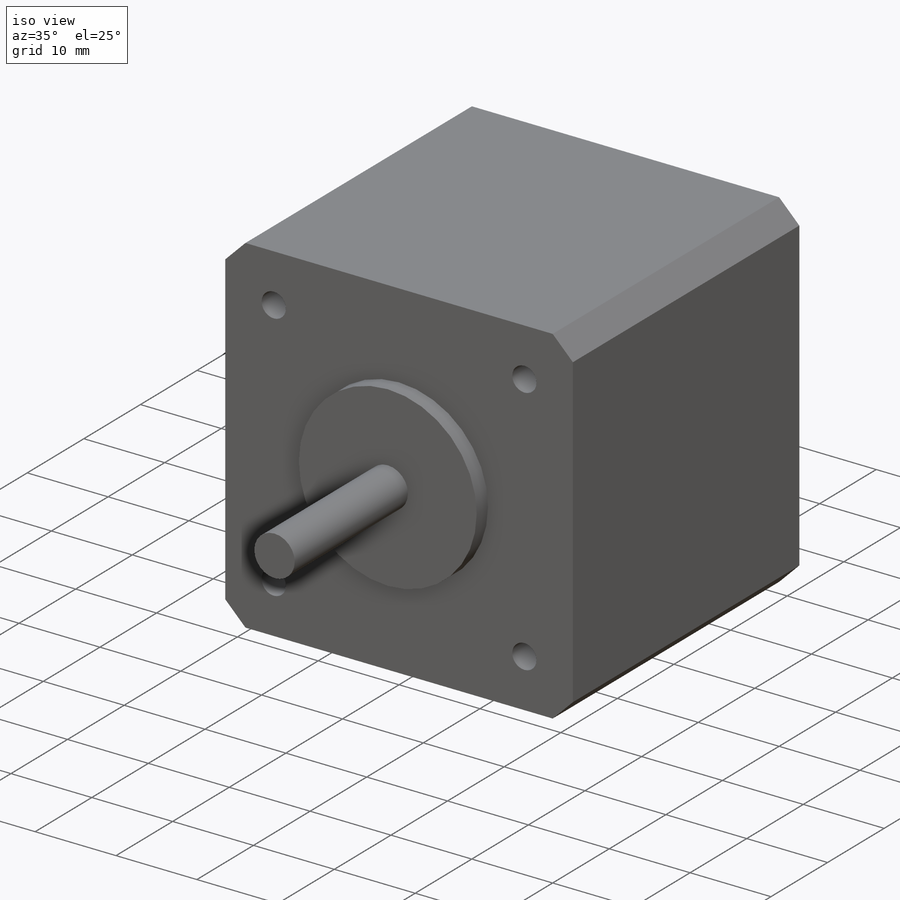
[diagram: iso view]
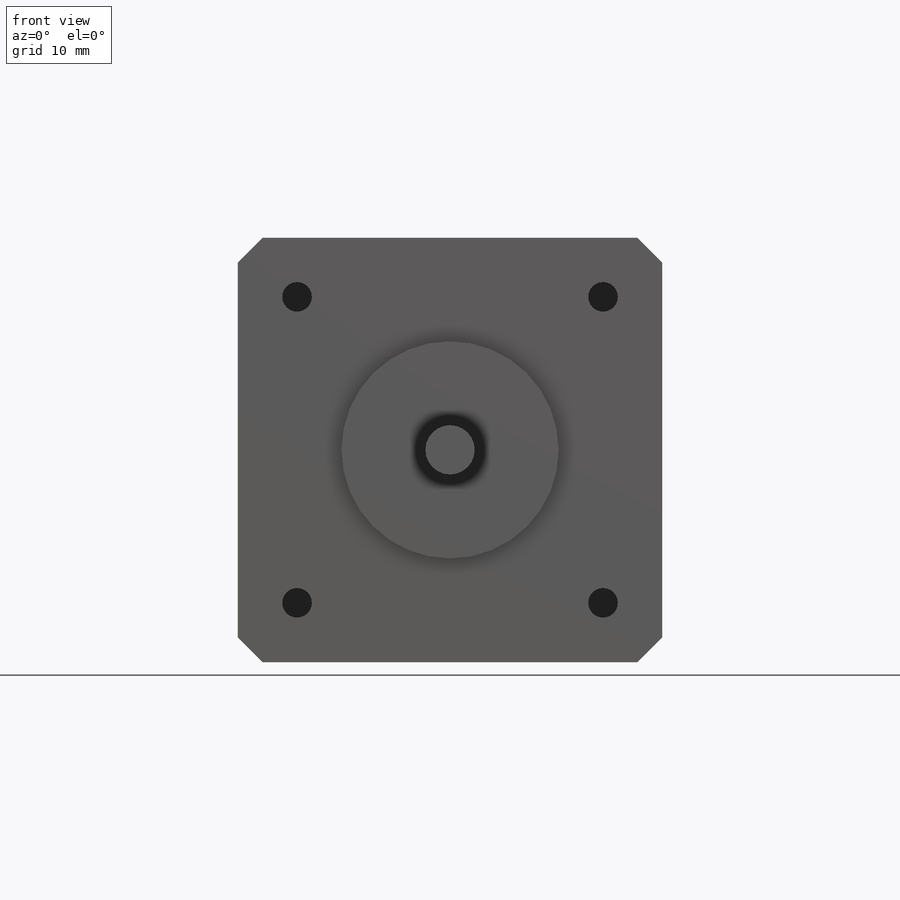
[diagram: front view]
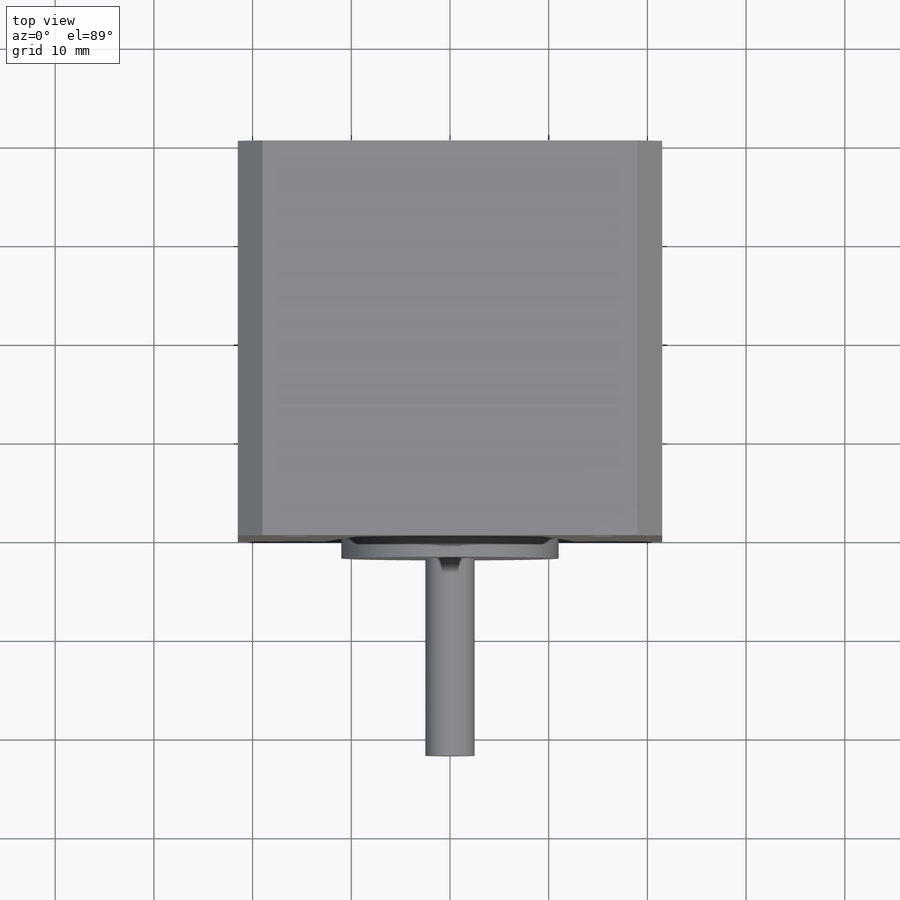
[diagram: top view]
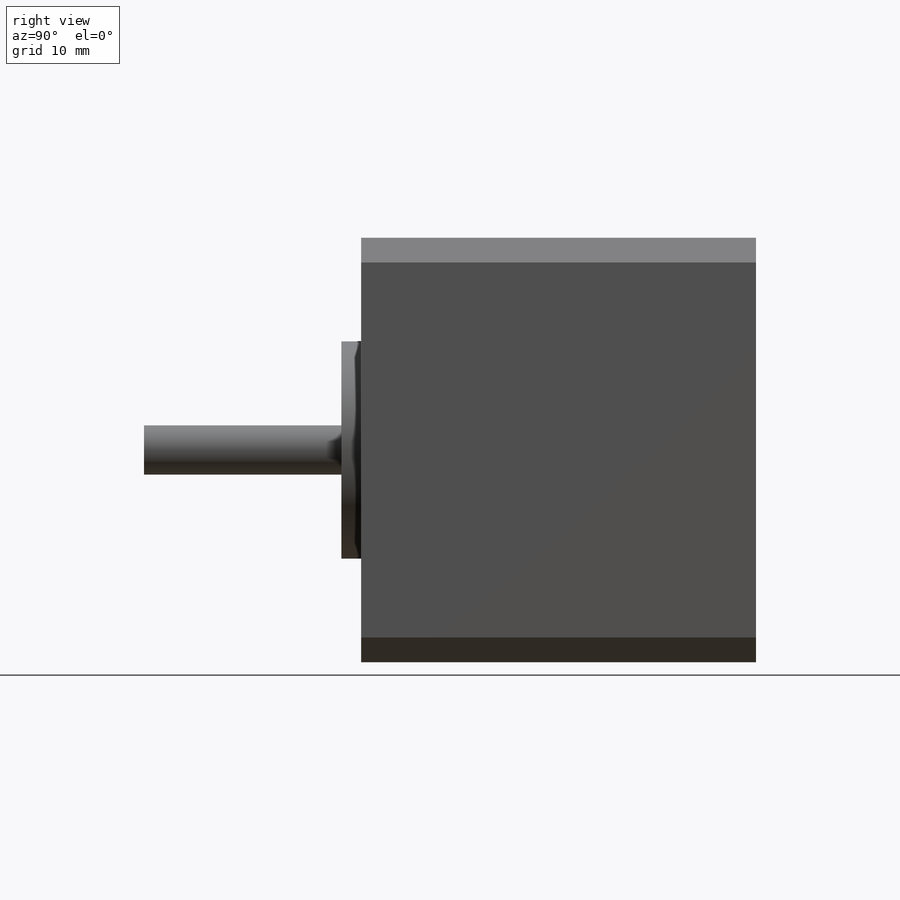
[diagram: right view]
SOLIDWORKS PART (.sldprt)
format: sldprt  version: not decoded by parser v0  size: 205,312 bytes
history: native  units: mm
features: sketch x4, extrude x3, material x1, chamfer x1, cut_extrude x1 (+11 scaffold rows collapsed)
feature tree (21):
  scaffold x11  (default folders/planes/origin — collapsed)
  material  "Material <not specified>"
  sketch  "Sketch1"  dims[D1=43.0mm]
  extrude  "Boss-Extrude1"  Depth=40mm
  chamfer  "Chamfer1"  Distance=2.5mm Angle=45deg
  sketch  "Sketch2"  dims[D1=~5.033482mm]
  extrude  "Boss-Extrude2"  Depth=2mm
  sketch  "Sketch3"  dims[D1=~2.88163mm]
  extrude  "Boss-Extrude3"  Depth=20mm
  sketch  "Sketch4"  dims[c1.D3=~0.90224mm c1.D1=3.0mm c1.D4=3.0mm c2.D1=6.0mm c2.D2=6.0mm c2.D4=31.0mm c3.D1=5.15mm c3.D2=5.15mm c3.D3=4.0]
  cut_extrude  "Cut-Extrude1"  Depth=10mm
decode coverage: 9 of 9 modeling features carry decoded parameters
note: ~ marks probable driven/reference dimensions
note: suppression state not decoded; provenance and decode notes live in map.json
